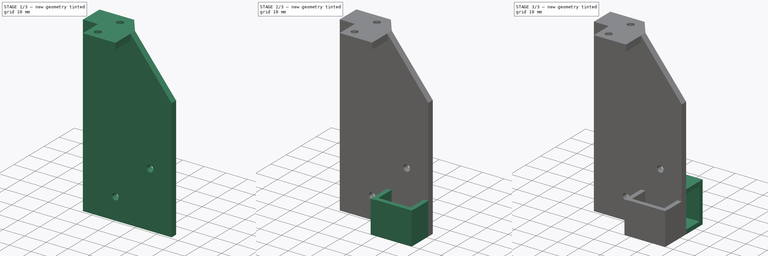
[diagram: build sequence overview — one tinted view per stage of 3, left to right]
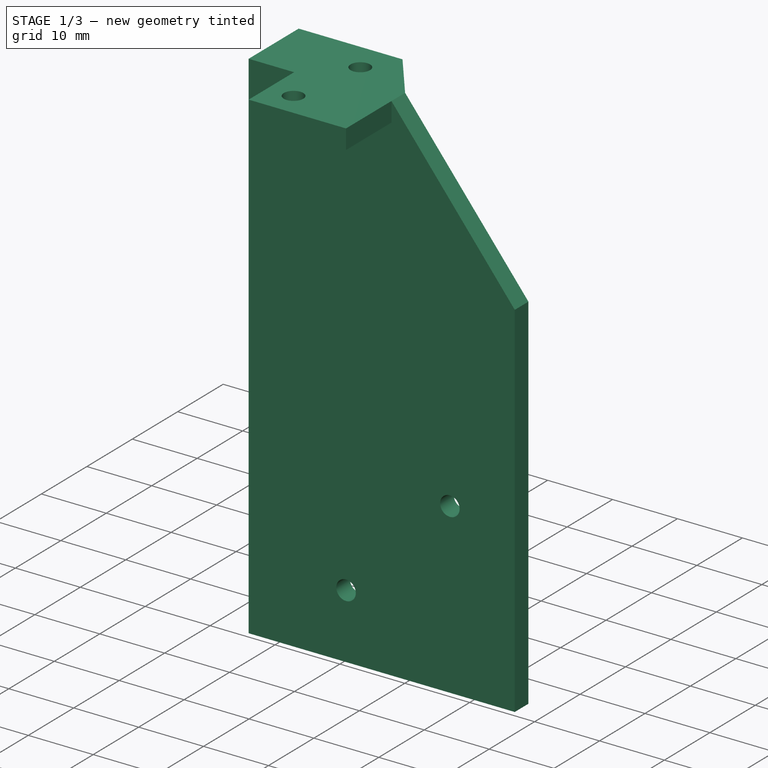
[diagram: stage 1 of 3 — iso view after this stage's code; geometry added in this stage tinted green]
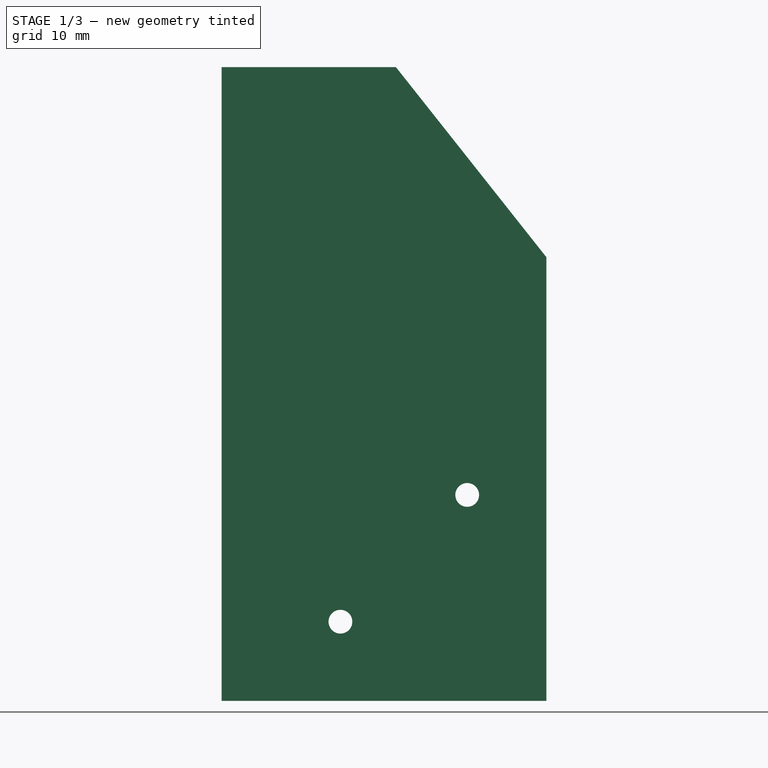
[diagram: stage 1 of 3 — front view after this stage's code; geometry added in this stage tinted green]
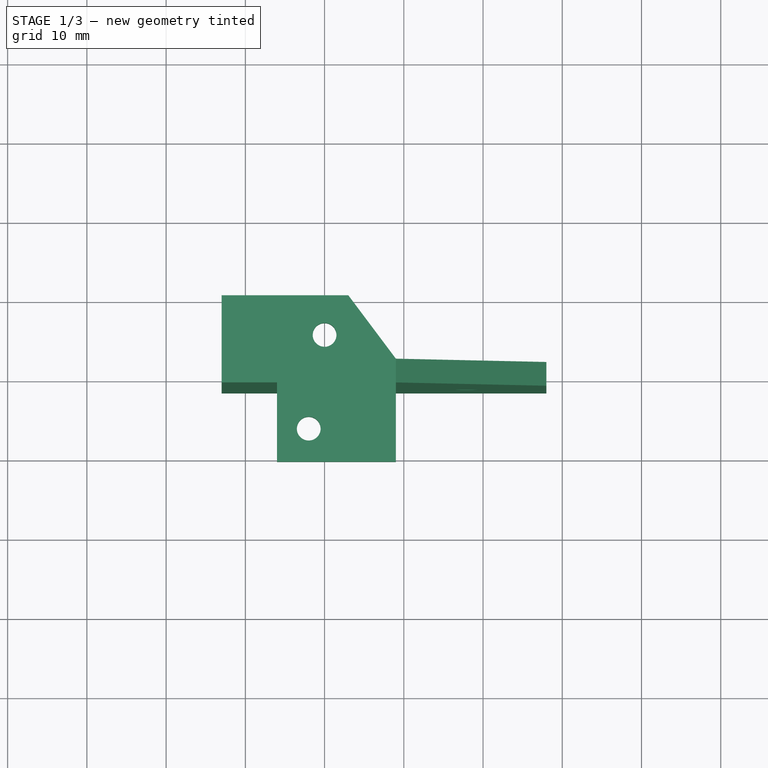
[diagram: stage 1 of 3 — top view after this stage's code; geometry added in this stage tinted green]
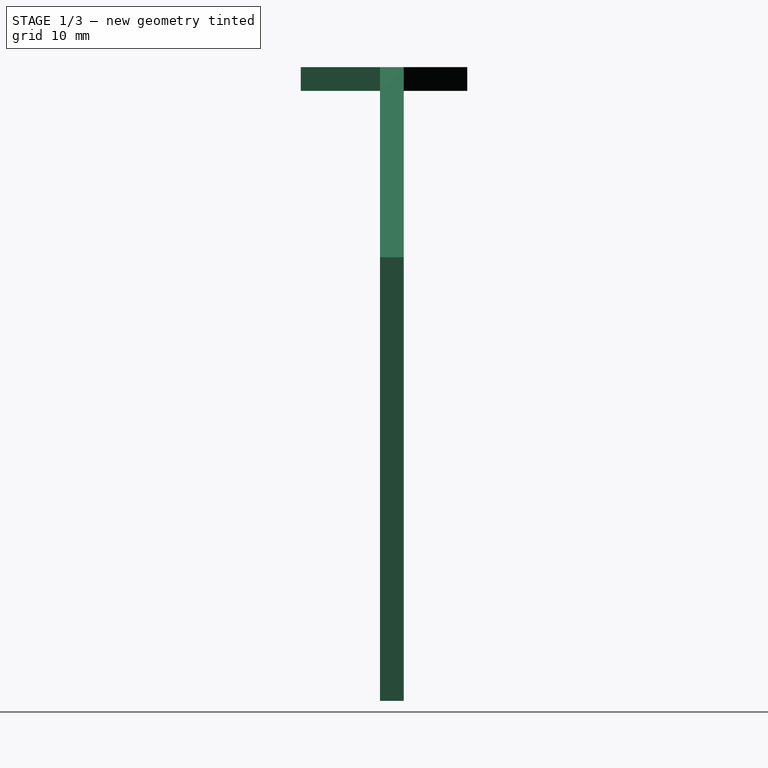
[diagram: stage 1 of 3 — right view after this stage's code; geometry added in this stage tinted green]
FCSTD DOCUMENT  (FreeCAD 0.19R22492 (Git))
Label: sensors_console
License: All rights reserved
LicenseURL: http://en.wikipedia.org/wiki/All_rights_reserved
objects: Sketcher::SketchObject×6, PartDesign::Pad×6, PartDesign::Body×1
note: 19 computed .brp shape members not serialized (recipe doc carries the construction recipe); baked Part::Feature solids carry a one-line shape summary decoded from their .brp

FEATURE [Sketcher::SketchObject] Sketch  label="Main Fin"
  MapMode = 5
  Placement = pos=(0,0,0) rot=(1,0,0;1.5708rad)
  Support = -> [XZ_Plane]
  sketch-geometry (21):
    g0: LineSegment StartX=28 StartY=-24 StartZ=0 EndX=28 EndY=-80 EndZ=0
    g1: LineSegment StartX=28 StartY=-80 StartZ=0 EndX=-13 EndY=-80 EndZ=0
    g2: LineSegment StartX=-13 StartY=-80 StartZ=0 EndX=-13 EndY=0 EndZ=0
    g3: Circle CenterX=18 CenterY=-54 CenterZ=0 NormalX=0 NormalY=0 NormalZ=1 AngleXU=0 Radius=1.5
    g4: Circle CenterX=2 CenterY=-70 CenterZ=0 NormalX=0 NormalY=0 NormalZ=1 AngleXU=0 Radius=1.5
    g5: LineSegment [constr] StartX=11 StartY=-37 StartZ=0 EndX=25 EndY=-37 EndZ=0
    g6: LineSegment [constr] StartX=25 StartY=-37 StartZ=0 EndX=25 EndY=-77 EndZ=0
    g7: LineSegment [constr] StartX=25 StartY=-77 StartZ=0 EndX=11 EndY=-77 EndZ=0
    g8: LineSegment [constr] StartX=11 StartY=-77 StartZ=0 EndX=11 EndY=-37 EndZ=0
    g9: GeomPoint X=18 Y=-54 Z=0
    g10: LineSegment [constr] StartX=11 StartY=-37 StartZ=0 EndX=18 EndY=-54 EndZ=0
    g11: LineSegment [constr] StartX=18 StartY=-54 StartZ=0 EndX=25 EndY=-37 EndZ=0
    g12: LineSegment [constr] StartX=-15 StartY=-63 StartZ=0 EndX=25 EndY=-63 EndZ=0
    g13: LineSegment [constr] StartX=25 StartY=-63 StartZ=0 EndX=25 EndY=-77 EndZ=0
    g14: LineSegment [constr] StartX=25 StartY=-77 StartZ=0 EndX=-15 EndY=-77 EndZ=0
    g15: LineSegment [constr] StartX=-15 StartY=-77 StartZ=0 EndX=-15 EndY=-63 EndZ=0
    g16: GeomPoint X=2 Y=-70 Z=0
    g17: LineSegment [constr] StartX=-15 StartY=-77 StartZ=0 EndX=2 EndY=-70 EndZ=0
    g18: LineSegment [constr] StartX=2 StartY=-70 StartZ=0 EndX=-15 EndY=-63 EndZ=0
    g19: LineSegment StartX=-13 StartY=0 StartZ=0 EndX=9 EndY=0 EndZ=0
    g20: LineSegment StartX=9 StartY=0 StartZ=0 EndX=28 EndY=-24 EndZ=0
  constraints (54):
    c: Coincident(g0,g1)
    c: Coincident(g1,g2)
    c: Horizontal(g1)
    c: Vertical(g0)
    c: Vertical(g2)
    c: PointOnObject(g2,g-1)
    c: DistanceX(g2,g-1) = 13
    c: DistanceY(g1,g2) = 80
    c: Diameter(g3) = 3
    c: Diameter(g4) = 3
    c: DistanceY(g4,g2) = 70
    c: Coincident(g5,g6)
    c: Coincident(g6,g7)
    c: Coincident(g7,g8)
    c: Coincident(g8,g5)
    c: Horizontal(g5)
    c: Horizontal(g7)
    c: Vertical(g6)
    c: Vertical(g8)
    c: DistanceX(g5,g5) = 14
    c: DistanceY(g6,g5) = 40
    c: Coincident(g10,g5)
    c: Coincident(g10,g9)
    c: Coincident(g11,g9)
    c: Coincident(g11,g5)
    c: Equal(g10,g11)
    c: DistanceY(g6,g9) = 23
    c: Coincident(g12,g13)
    c: Coincident(g13,g14)
    c: Coincident(g14,g15)
    c: Coincident(g15,g12)
    c: Horizontal(g12)
    c: Horizontal(g14)
    c: Vertical(g13)
    c: Vertical(g15)
    c: Coincident(g17,g14)
    c: Coincident(g17,g16)
    c: Coincident(g18,g16)
    c: Coincident(g18,g12)
    c: Equal(g18,g17)
    c: DistanceX(g12,g12) = 40
    c: DistanceX(g16,g13) = 23
    c: DistanceY(g13,g12) = 14
    c: Coincident(g16,g4)
    c: Coincident(g9,g3)
    c: DistanceX(g3,g0) = 10
    c: DistanceX(g1,g0) = 41
    c: Coincident(g19,g2)
    c: Horizontal(g19)
    c: Coincident(g20,g19)
    c: Coincident(g20,g0)
    c: DistanceX(g-1,g19) = 9
    c: DistanceY(g0,g-1) = 24
    c: Coincident(g13,g6)
FEATURE [PartDesign::Pad] Pad
  Direction = (1,1,1)
  Length = 3
  Length2 = 100
  Midplane = true
  Placement = pos=(0,0,0) rot=(1,0,0;1.5708rad)
  Profile = -> Sketch
  Type = 0
FEATURE [Sketcher::SketchObject] Sketch001  label="Top Holder"
  ExternalGeometry = -> [Pad]
  MapMode = 5
  Placement = pos=(0,0,0) rot=(0,0,1;3.14159rad)
  Support = -> [Pad]
  sketch-geometry (10):
    g0: Circle CenterX=0 CenterY=-4.5 CenterZ=0 NormalX=0 NormalY=0 NormalZ=1 AngleXU=0 Radius=1.5
    g1: LineSegment StartX=-9 StartY=-1.5 StartZ=0 EndX=-3 EndY=-9.5 EndZ=0
    g2: LineSegment StartX=-3 StartY=-9.5 StartZ=0 EndX=13 EndY=-9.5 EndZ=0
    g3: LineSegment StartX=13 StartY=-1.5 StartZ=0 EndX=13 EndY=-9.5 EndZ=0
    g4: LineSegment StartX=13 StartY=-1.5 StartZ=0 EndX=6 EndY=1.5 EndZ=0
    g5: LineSegment StartX=-9 StartY=-1.5 StartZ=0 EndX=-9 EndY=1.5 EndZ=0
    g6: LineSegment StartX=-9 StartY=1.5 StartZ=0 EndX=-9 EndY=11.5 EndZ=0
    g7: LineSegment StartX=-9 StartY=11.5 StartZ=0 EndX=6 EndY=11.5 EndZ=0
    g8: LineSegment StartX=6 StartY=1.5 StartZ=0 EndX=6 EndY=11.5 EndZ=0
    g9: Circle CenterX=2 CenterY=7.33216 CenterZ=0 NormalX=0 NormalY=0 NormalZ=1 AngleXU=0 Radius=1.5
  constraints (27):
    c: Diameter(g0) = 3
    c: PointOnObject(g0,g-2)
    c: DistanceY(g0,g-1) = 4.5
    c: Coincident(g1,g-3)
    c: Coincident(g2,g1)
    c: Horizontal(g2)
    c: Coincident(g3,g-3)
    c: Coincident(g3,g2)
    c: Vertical(g3)
    c: DistanceY(g2,g3) = 8
    c: Coincident(g4,g3)
    c: Coincident(g5,g1)
    c: Coincident(g5,g-4)
    c: Coincident(g6,g5)
    c: Vertical(g6)
    c: Coincident(g7,g6)
    c: Horizontal(g7)
    c: Coincident(g8,g4)
    c: Coincident(g8,g7)
    c: Vertical(g8)
    c: DistanceY(g4,g7) = 10
    c: DistanceX(g1,g2) = 16
    c: Distance(g0,g9) = 12
    c: Diameter(g9) = 3
    c: DistanceX(g-1,g9) = 2
    c: PointOnObject(g4,g-4)
    c: DistanceX(g-1,g4) = 6
FEATURE [PartDesign::Pad] Pad001
  BaseFeature = -> Pad
  Direction = (1,1,1)
  Length = 3
  Length2 = 100
  Placement = pos=(0,0,0) rot=(1,0,0;1.5708rad)
  Profile = -> Sketch001
  Reversed = true
  Type = 0
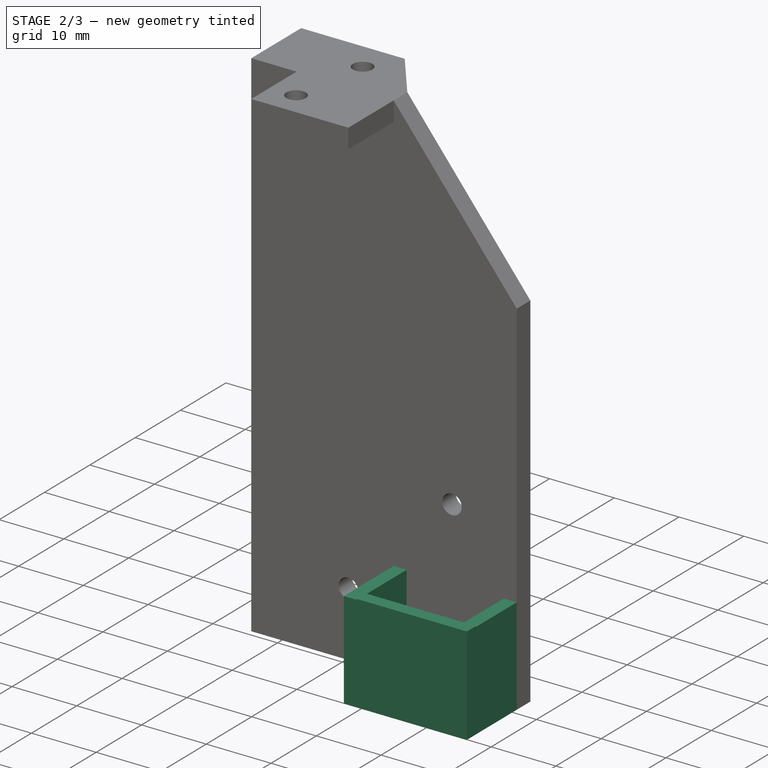
[diagram: stage 2 of 3 — iso view after this stage's code; geometry added in this stage tinted green]
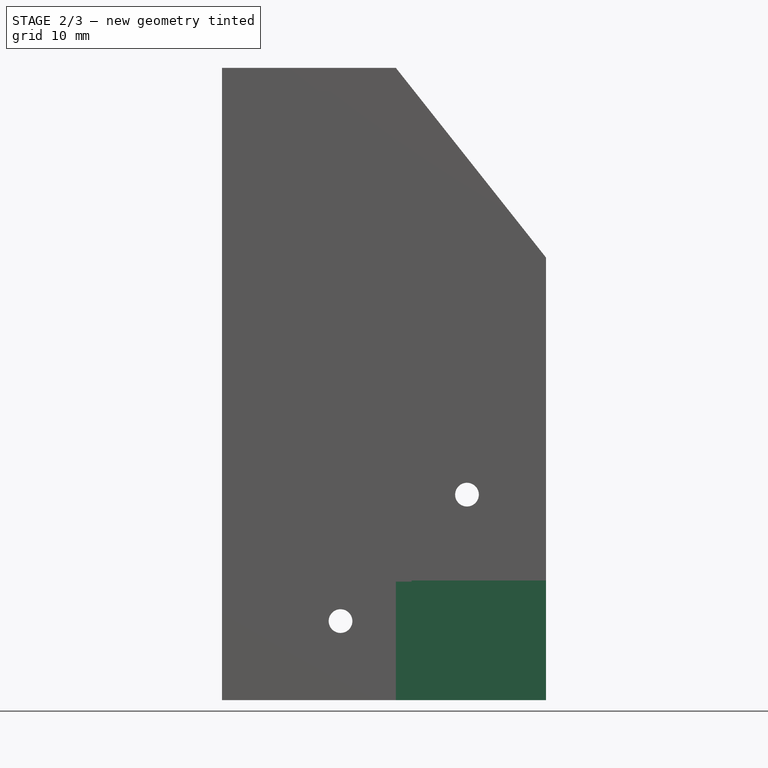
[diagram: stage 2 of 3 — front view after this stage's code; geometry added in this stage tinted green]
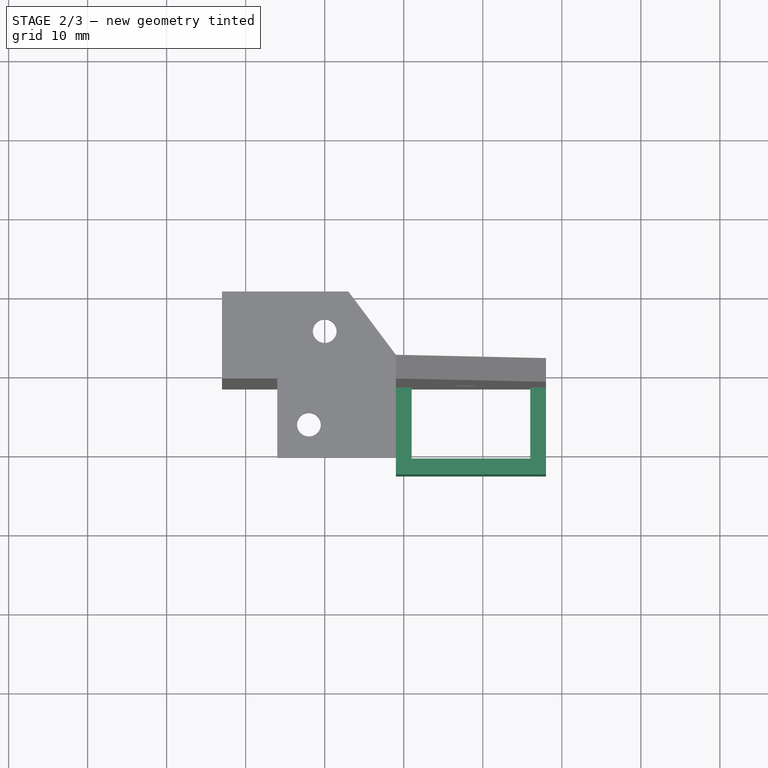
[diagram: stage 2 of 3 — top view after this stage's code; geometry added in this stage tinted green]
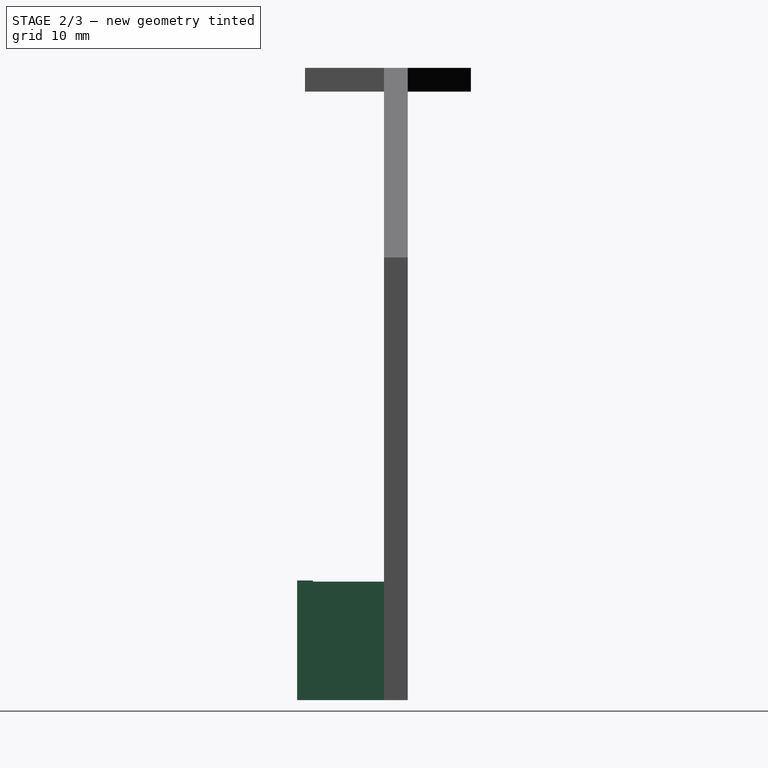
[diagram: stage 2 of 3 — right view after this stage's code; geometry added in this stage tinted green]
FEATURE [Sketcher::SketchObject] Sketch002  label="Bottom Sensor Walls"
  ExternalGeometry = -> [Pad001]
  MapMode = 5
  Placement = pos=(0,-1.5,-3e-16) rot=(1,0,0;1.5708rad)
  Support = -> [Pad001]
  sketch-geometry (8):
    g0: LineSegment StartX=26 StartY=-65 StartZ=0 EndX=28 EndY=-65 EndZ=0
    g1: LineSegment StartX=28 StartY=-65 StartZ=0 EndX=28 EndY=-80 EndZ=0
    g2: LineSegment StartX=28 StartY=-80 StartZ=0 EndX=26 EndY=-80 EndZ=0
    g3: LineSegment StartX=26 StartY=-80 StartZ=0 EndX=26 EndY=-65 EndZ=0
    g4: LineSegment StartX=9 StartY=-65 StartZ=0 EndX=11 EndY=-65 EndZ=0
    g5: LineSegment StartX=11 StartY=-65 StartZ=0 EndX=11 EndY=-80 EndZ=0
    g6: LineSegment StartX=11 StartY=-80 StartZ=0 EndX=9 EndY=-80 EndZ=0
    g7: LineSegment StartX=9 StartY=-80 StartZ=0 EndX=9 EndY=-65 EndZ=0
  constraints (23):
    c: Coincident(g0,g1)
    c: Coincident(g1,g2)
    c: Coincident(g2,g3)
    c: Coincident(g3,g0)
    c: Horizontal(g0)
    c: Horizontal(g2)
    c: Vertical(g1)
    c: Vertical(g3)
    c: Coincident(g1,g-3)
    c: DistanceX(g0,g0) = 2
    c: DistanceY(g1,g0) = 15
    c: Coincident(g4,g5)
    c: Coincident(g5,g6)
    c: Coincident(g6,g7)
    c: Coincident(g7,g4)
    c: Horizontal(g4)
    c: Horizontal(g6)
    c: Vertical(g5)
    c: Vertical(g7)
    c: Equal(g4,g0)
    c: PointOnObject(g6,g-4)
    c: Equal(g5,g1)
    c: DistanceX(g5,g2) = 15
FEATURE [PartDesign::Pad] Pad002
  BaseFeature = -> Pad001
  Direction = (1,1,1)
  Length = 11
  Length2 = 100
  Placement = pos=(0,0,0) rot=(1,0,0;1.5708rad)
  Profile = -> Sketch002
  Type = 0
FEATURE [Sketcher::SketchObject] Sketch003  label="Bottom Sensor Cap"
  ExternalGeometry = -> [Pad002]
  MapMode = 5
  Placement = pos=(11,0,0) rot=(0.707107,0,0.707107;3.14159rad)
  Support = -> [Pad002]
  sketch-geometry (4):
    g0: LineSegment StartX=-80 StartY=12.5 StartZ=0 EndX=-64.8673 EndY=12.5 EndZ=0
    g1: LineSegment StartX=-64.8673 StartY=12.5 StartZ=0 EndX=-64.8673 EndY=10.5 EndZ=0
    g2: LineSegment StartX=-64.8673 StartY=10.5 StartZ=0 EndX=-80 EndY=10.5 EndZ=0
    g3: LineSegment StartX=-80 StartY=10.5 StartZ=0 EndX=-80 EndY=12.5 EndZ=0
  constraints (10):
    c: Coincident(g0,g1)
    c: Coincident(g1,g2)
    c: Coincident(g2,g3)
    c: Coincident(g3,g0)
    c: Horizontal(g0)
    c: Horizontal(g2)
    c: Vertical(g1)
    c: Vertical(g3)
    c: Coincident(g0,g-3)
    c: DistanceY(g1,g-3) = 2
FEATURE [PartDesign::Pad] Pad003
  BaseFeature = -> Pad002
  Direction = (1,1,1)
  Length = 17
  Length2 = 100
  Placement = pos=(0,0,0) rot=(1,0,0;1.5708rad)
  Profile = -> Sketch003
  Type = 0
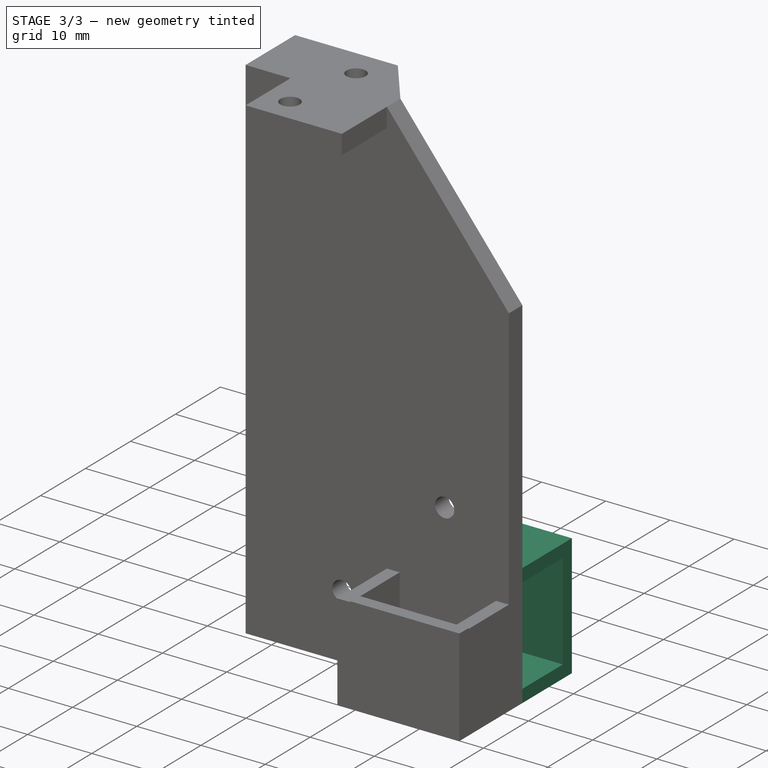
[diagram: stage 3 of 3 — iso view after this stage's code; geometry added in this stage tinted green]
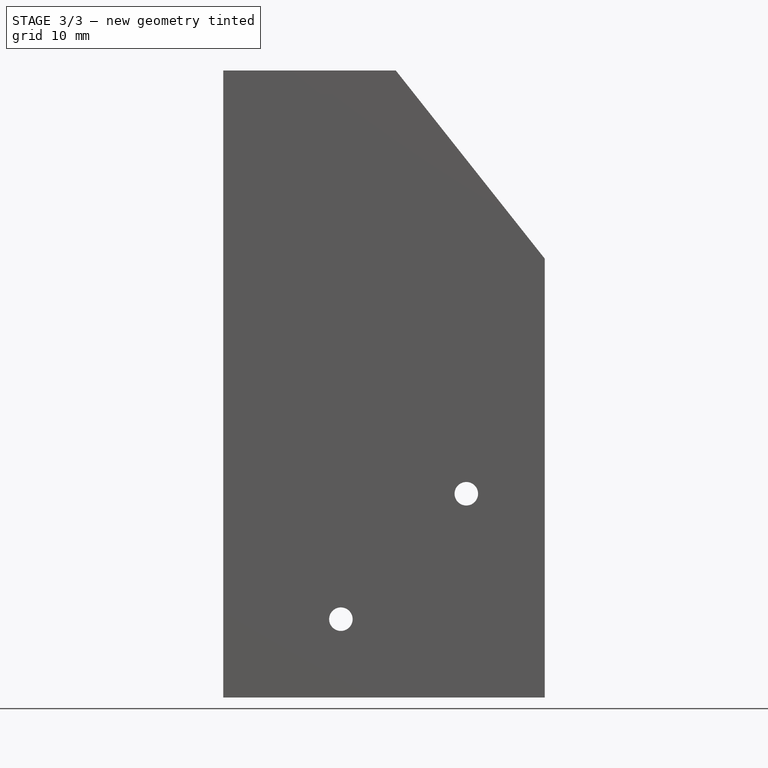
[diagram: stage 3 of 3 — front view after this stage's code; geometry added in this stage tinted green]
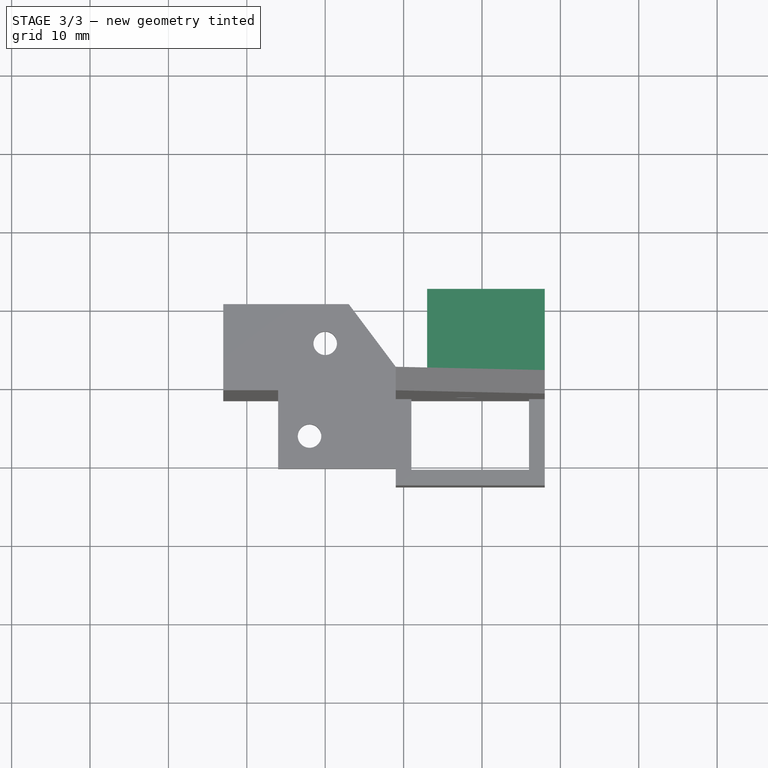
[diagram: stage 3 of 3 — top view after this stage's code; geometry added in this stage tinted green]
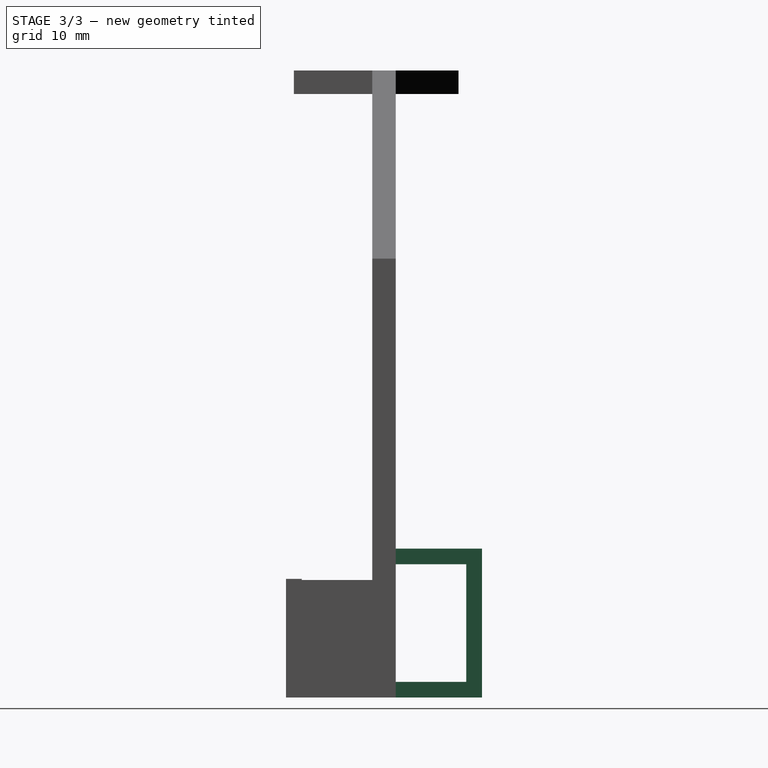
[diagram: stage 3 of 3 — right view after this stage's code; geometry added in this stage tinted green]
FEATURE [Sketcher::SketchObject] Sketch004  label="Front Sensor Walls"
  ExternalGeometry = -> [Pad003]
  MapMode = 5
  Placement = pos=(0,1.5,3e-16) rot=(-1,0,0;1.5708rad)
  Support = -> [Pad003]
  sketch-geometry (8):
    g0: LineSegment StartX=28 StartY=80 StartZ=0 EndX=13 EndY=80 EndZ=0
    g1: LineSegment StartX=13 StartY=80 StartZ=0 EndX=13 EndY=78 EndZ=0
    g2: LineSegment StartX=13 StartY=78 StartZ=0 EndX=28 EndY=78 EndZ=0
    g3: LineSegment StartX=28 StartY=78 StartZ=0 EndX=28 EndY=80 EndZ=0
    g4: LineSegment StartX=13 StartY=63 StartZ=0 EndX=28 EndY=63 EndZ=0
    g5: LineSegment StartX=28 StartY=63 StartZ=0 EndX=28 EndY=61 EndZ=0
    g6: LineSegment StartX=28 StartY=61 StartZ=0 EndX=13 EndY=61 EndZ=0
    g7: LineSegment StartX=13 StartY=61 StartZ=0 EndX=13 EndY=63 EndZ=0
  constraints (23):
    c: Coincident(g0,g1)
    c: Coincident(g1,g2)
    c: Coincident(g2,g3)
    c: Coincident(g3,g0)
    c: Horizontal(g0)
    c: Horizontal(g2)
    c: Vertical(g1)
    c: Vertical(g3)
    c: Coincident(g0,g-3)
    c: Coincident(g4,g5)
    c: Coincident(g5,g6)
    c: Coincident(g6,g7)
    c: Coincident(g7,g4)
    c: Horizontal(g4)
    c: Horizontal(g6)
    c: Vertical(g5)
    c: Vertical(g7)
    c: Vertical(g0,g4)
    c: Equal(g0,g4)
    c: DistanceY(g2,g0) = 2
    c: DistanceY(g5,g4) = 2
    c: DistanceY(g4,g2) = 15
    c: DistanceX(g0,g0) = 15
FEATURE [PartDesign::Pad] Pad004
  BaseFeature = -> Pad003
  Direction = (1,1,1)
  Length = 11
  Length2 = 100
  Placement = pos=(0,0,0) rot=(1,0,0;1.5708rad)
  Profile = -> Sketch004
  Type = 0
FEATURE [Sketcher::SketchObject] Sketch005  label="Front Sensor Cap"
  ExternalGeometry = -> [Pad004]
  MapMode = 5
  Placement = pos=(0,1.73e-14,-78) rot=(0,0,1;3.14159rad)
  Support = -> [Pad004]
  sketch-geometry (4):
    g0: LineSegment StartX=-28 StartY=-12.5 StartZ=0 EndX=-13 EndY=-12.5 EndZ=0
    g1: LineSegment StartX=-13 StartY=-12.5 StartZ=0 EndX=-13 EndY=-10.5 EndZ=0
    g2: LineSegment StartX=-13 StartY=-10.5 StartZ=0 EndX=-28 EndY=-10.5 EndZ=0
    g3: LineSegment StartX=-28 StartY=-10.5 StartZ=0 EndX=-28 EndY=-12.5 EndZ=0
  constraints (10):
    c: Coincident(g0,g1)
    c: Coincident(g1,g2)
    c: Coincident(g2,g3)
    c: Coincident(g3,g0)
    c: Horizontal(g2)
    c: Vertical(g1)
    c: Vertical(g3)
    c: Coincident(g0,g-3)
    c: Coincident(g0,g-3)
    c: DistanceY(g0,g1) = 2
FEATURE [PartDesign::Pad] Pad005
  BaseFeature = -> Pad004
  Direction = (1,1,1)
  Length = 17
  Length2 = 100
  Placement = pos=(0,0,0) rot=(1,0,0;1.5708rad)
  Profile = -> Sketch005
  Type = 0
FEATURE [PartDesign::Body] Body
  Group = -> [Sketch,Pad,Sketch001,Pad001,Sketch002,Pad002,Sketch003,Pad003,Sketch004,Pad004,Sketch005,Pad005]
  Origin = -> Origin
  Tip = -> Pad005
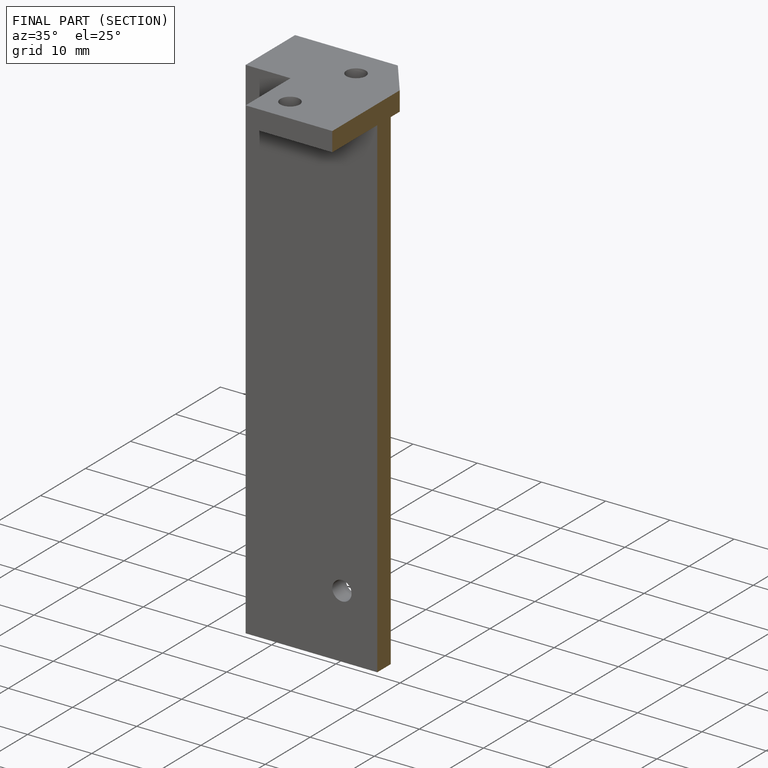
[diagram: finished part — half-section view (interior)]
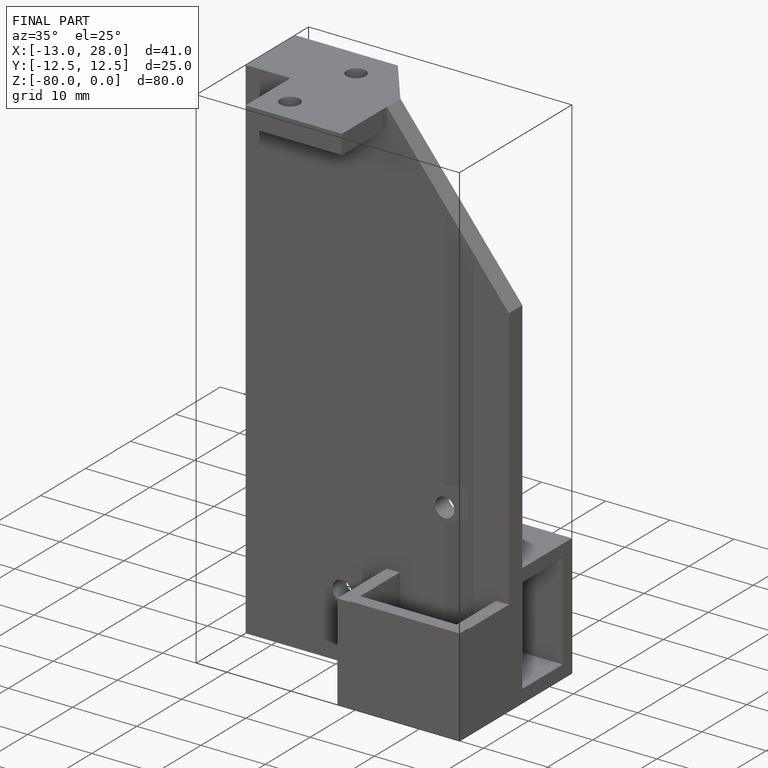
[diagram: finished part — iso view with bounding-box wireframe]
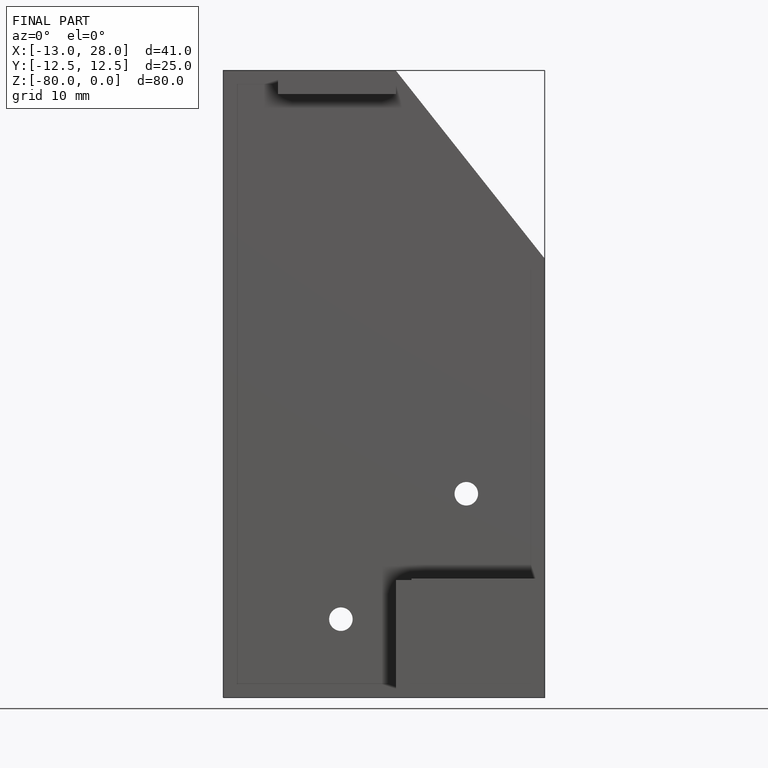
[diagram: finished part — front view with bounding-box wireframe]
